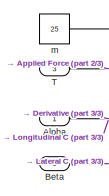
[diagram: root canvas - part 1/3, top left region]
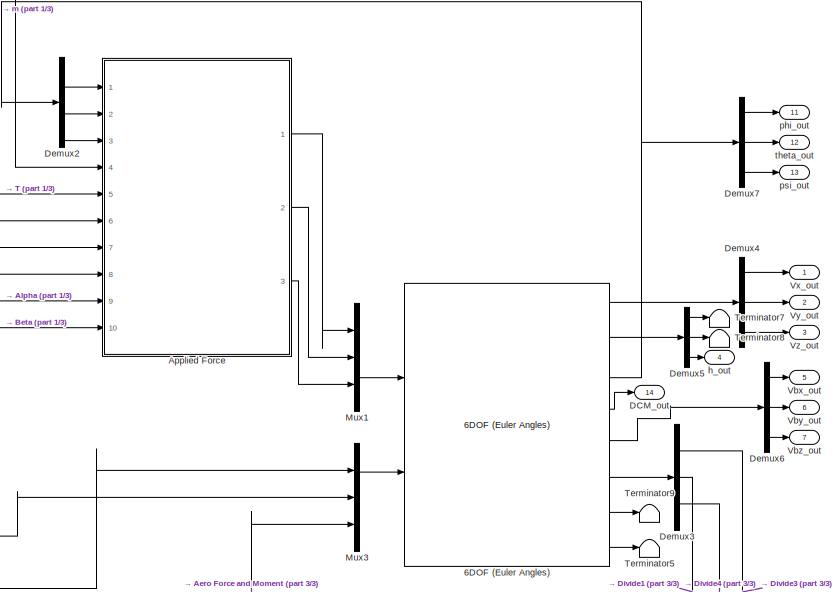
[diagram: root canvas - part 2/3, top right region]
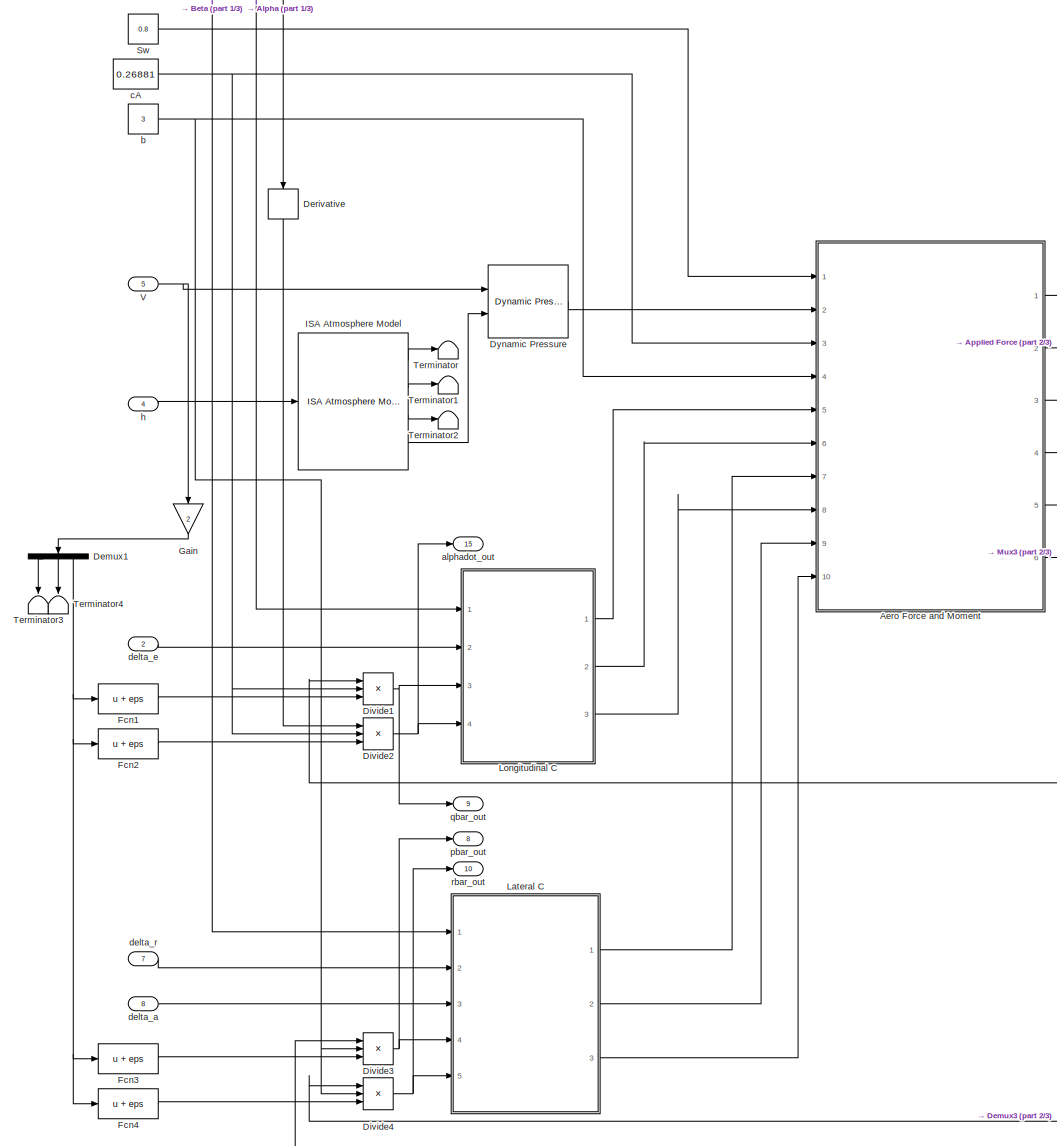
[diagram: root canvas - part 3/3, left side, full height]
MODEL slx_e022240f45c0
KIND model
CONFIG AbsTol = auto
CONFIG EnableMultiTasking = off
CONFIG FixedStep = auto
CONFIG MaxStep = auto
CONFIG MinStep = auto
CONFIG RelTol = 1e-3
CONFIG SampleTimeConstraint = Unconstrained
CONFIG Solver = VariableStepAuto
CONFIG SolverName = VariableStepAuto
CONFIG StartTime = 0.0
CONFIG StopTime = 10
BLOCK [Reference] 6DOF (Euler Angles)  REF=shared6dof/6DOF (Euler Angles)
  Ports = [2, 8]
  SourceBlock = shared6dof/6DOF (Euler Angles)
  SourceProductBaseCode = AE
  SourceProductName = Aerospace Blockset
  SourceType = 6DOF EoM (Body Axis)
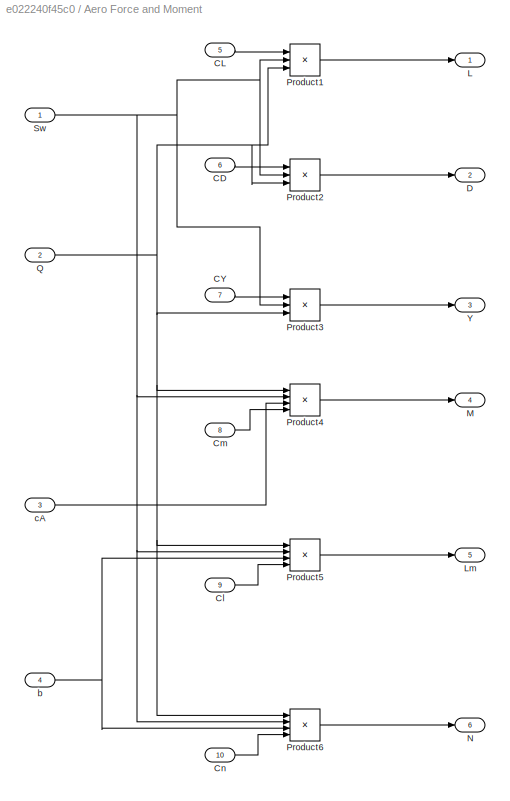
BLOCK [SubSystem] Aero Force and Moment
  Ports = [10, 6]
  RequestExecContextInheritance = off
BLOCK [Inport] Aero Force and Moment/CD
  IconDisplay = Port number
  Port = 6
BLOCK [Inport] Aero Force and Moment/CL
  IconDisplay = Port number
  Port = 5
BLOCK [Inport] Aero Force and Moment/CY
  IconDisplay = Port number
  Port = 7
BLOCK [Inport] Aero Force and Moment/Cl
  IconDisplay = Port number
  Port = 9
BLOCK [Inport] Aero Force and Moment/Cm
  IconDisplay = Port number
  Port = 8
BLOCK [Inport] Aero Force and Moment/Cn
  IconDisplay = Port number
  Port = 10
BLOCK [Outport] Aero Force and Moment/D
  IconDisplay = Port number
  Port = 2
BLOCK [Outport] Aero Force and Moment/L
  IconDisplay = Port number
BLOCK [Outport] Aero Force and Moment/Lm
  IconDisplay = Port number
  Port = 5
BLOCK [Outport] Aero Force and Moment/M
  IconDisplay = Port number
  Port = 4
BLOCK [Outport] Aero Force and Moment/N
  IconDisplay = Port number
  Port = 6
BLOCK [Product] Aero Force and Moment/Product1
  InputSameDT = off
  Inputs = 3
  OutDataTypeStr = Inherit: Inherit via internal rule
  Ports = [3, 1]
  RndMeth = Floor
  SaturateOnIntegerOverflow = off
BLOCK [Product] Aero Force and Moment/Product2
  InputSameDT = off
  Inputs = 3
  OutDataTypeStr = Inherit: Inherit via internal rule
  Ports = [3, 1]
  RndMeth = Floor
  SaturateOnIntegerOverflow = off
BLOCK [Product] Aero Force and Moment/Product3
  InputSameDT = off
  Inputs = 3
  OutDataTypeStr = Inherit: Inherit via internal rule
  Ports = [3, 1]
  RndMeth = Floor
  SaturateOnIntegerOverflow = off
BLOCK [Product] Aero Force and Moment/Product4
  InputSameDT = off
  Inputs = 4
  OutDataTypeStr = Inherit: Inherit via internal rule
  Ports = [4, 1]
  RndMeth = Floor
  SaturateOnIntegerOverflow = off
BLOCK [Product] Aero Force and Moment/Product5
  InputSameDT = off
  Inputs = 4
  OutDataTypeStr = Inherit: Inherit via internal rule
  Ports = [4, 1]
  RndMeth = Floor
  SaturateOnIntegerOverflow = off
BLOCK [Product] Aero Force and Moment/Product6
  InputSameDT = off
  Inputs = 4
  OutDataTypeStr = Inherit: Inherit via internal rule
  Ports = [4, 1]
  RndMeth = Floor
  SaturateOnIntegerOverflow = off
BLOCK [Inport] Aero Force and Moment/Q
  IconDisplay = Port number
  Port = 2
BLOCK [Inport] Aero Force and Moment/Sw
  IconDisplay = Port number
BLOCK [Outport] Aero Force and Moment/Y
  IconDisplay = Port number
  Port = 3
BLOCK [Inport] Aero Force and Moment/b
  IconDisplay = Port number
  Port = 4
BLOCK [Inport] Aero Force and Moment/cA
  IconDisplay = Port number
  Port = 3
BLOCK [Inport] Alpha
  IconDisplay = Port number
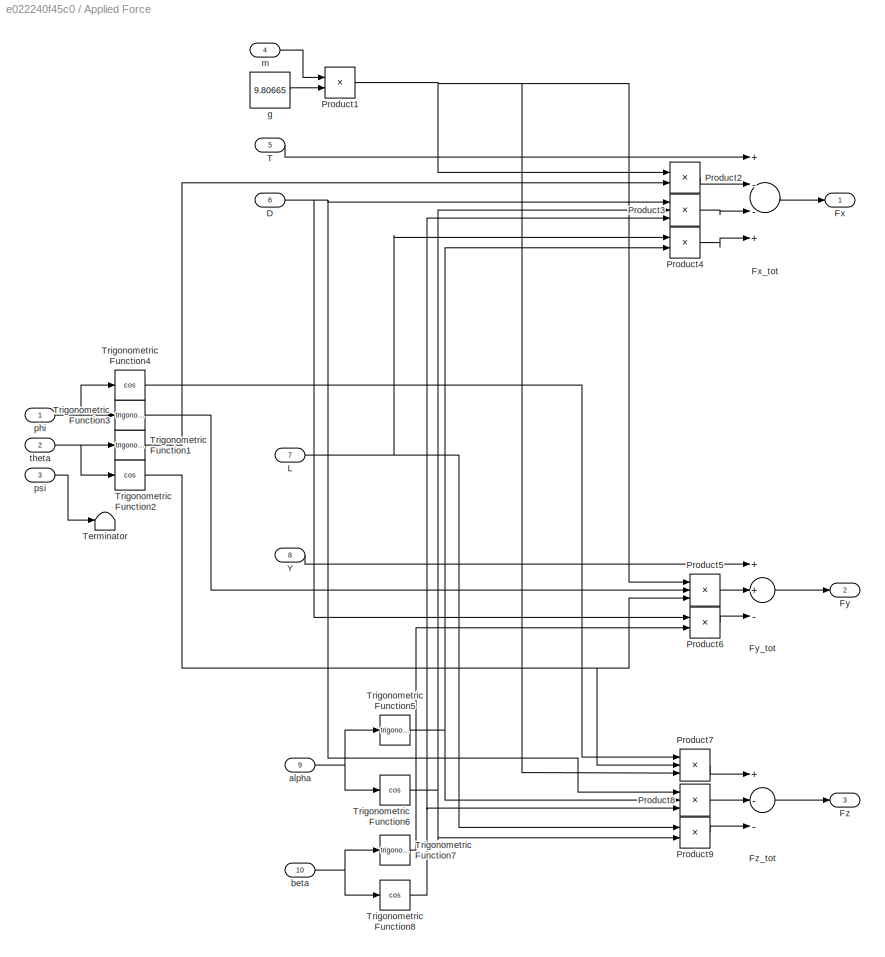
BLOCK [SubSystem] Applied Force
  Ports = [10, 3]
  RequestExecContextInheritance = off
BLOCK [Inport] Applied Force/D
  IconDisplay = Port number
  Port = 6
BLOCK [Outport] Applied Force/Fx
  IconDisplay = Port number
BLOCK [Sum] Applied Force/Fx_tot
  InputSameDT = off
  Inputs = +--+
  OutDataTypeStr = Inherit: Inherit via internal rule
  Ports = [4, 1]
  SaturateOnIntegerOverflow = off
BLOCK [Outport] Applied Force/Fy
  IconDisplay = Port number
  Port = 2
BLOCK [Sum] Applied Force/Fy_tot
  InputSameDT = off
  Inputs = ++-
  OutDataTypeStr = Inherit: Inherit via internal rule
  Ports = [3, 1]
  SaturateOnIntegerOverflow = off
BLOCK [Outport] Applied Force/Fz
  IconDisplay = Port number
  Port = 3
BLOCK [Sum] Applied Force/Fz_tot
  InputSameDT = off
  Inputs = +--
  OutDataTypeStr = Inherit: Inherit via internal rule
  Ports = [3, 1]
  SaturateOnIntegerOverflow = off
BLOCK [Inport] Applied Force/L
  IconDisplay = Port number
  Port = 7
BLOCK [Product] Applied Force/Product1
  InputSameDT = off
  OutDataTypeStr = Inherit: Inherit via internal rule
  Ports = [2, 1]
  RndMeth = Floor
  SaturateOnIntegerOverflow = off
BLOCK [Product] Applied Force/Product2
  InputSameDT = off
  OutDataTypeStr = Inherit: Inherit via internal rule
  Ports = [2, 1]
  RndMeth = Floor
  SaturateOnIntegerOverflow = off
BLOCK [Product] Applied Force/Product3
  InputSameDT = off
  Inputs = 3
  OutDataTypeStr = Inherit: Inherit via internal rule
  Ports = [3, 1]
  RndMeth = Floor
  SaturateOnIntegerOverflow = off
BLOCK [Product] Applied Force/Product4
  InputSameDT = off
  OutDataTypeStr = Inherit: Inherit via internal rule
  Ports = [2, 1]
  RndMeth = Floor
  SaturateOnIntegerOverflow = off
BLOCK [Product] Applied Force/Product5
  InputSameDT = off
  Inputs = 3
  OutDataTypeStr = Inherit: Inherit via internal rule
  Ports = [3, 1]
  RndMeth = Floor
  SaturateOnIntegerOverflow = off
BLOCK [Product] Applied Force/Product6
  InputSameDT = off
  OutDataTypeStr = Inherit: Inherit via internal rule
  Ports = [2, 1]
  RndMeth = Floor
  SaturateOnIntegerOverflow = off
BLOCK [Product] Applied Force/Product7
  InputSameDT = off
  Inputs = 3
  OutDataTypeStr = Inherit: Inherit via internal rule
  Ports = [3, 1]
  RndMeth = Floor
  SaturateOnIntegerOverflow = off
BLOCK [Product] Applied Force/Product8
  InputSameDT = off
  Inputs = 3
  OutDataTypeStr = Inherit: Inherit via internal rule
  Ports = [3, 1]
  RndMeth = Floor
  SaturateOnIntegerOverflow = off
BLOCK [Product] Applied Force/Product9
  InputSameDT = off
  OutDataTypeStr = Inherit: Inherit via internal rule
  Ports = [2, 1]
  RndMeth = Floor
  SaturateOnIntegerOverflow = off
BLOCK [Inport] Applied Force/T
  IconDisplay = Port number
  Port = 5
BLOCK [Terminator] Applied Force/Terminator
BLOCK [Trigonometry] Applied Force/Trigonometric Function1
  Ports = [1, 1]
BLOCK [Trigonometry] Applied Force/Trigonometric Function2
  Operator = cos
  Ports = [1, 1]
BLOCK [Trigonometry] Applied Force/Trigonometric Function3
  Ports = [1, 1]
BLOCK [Trigonometry] Applied Force/Trigonometric Function4
  Operator = cos
  Ports = [1, 1]
BLOCK [Trigonometry] Applied Force/Trigonometric Function5
  Ports = [1, 1]
BLOCK [Trigonometry] Applied Force/Trigonometric Function6
  Operator = cos
  Ports = [1, 1]
BLOCK [Trigonometry] Applied Force/Trigonometric Function7
  Ports = [1, 1]
BLOCK [Trigonometry] Applied Force/Trigonometric Function8
  Operator = cos
  Ports = [1, 1]
BLOCK [Inport] Applied Force/Y
  IconDisplay = Port number
  Port = 8
BLOCK [Inport] Applied Force/alpha
  IconDisplay = Port number
  Port = 9
BLOCK [Inport] Applied Force/beta
  IconDisplay = Port number
  Port = 10
BLOCK [Constant] Applied Force/g
  Value = 9.80665
BLOCK [Inport] Applied Force/m
  IconDisplay = Port number
  Port = 4
BLOCK [Inport] Applied Force/phi
  IconDisplay = Port number
BLOCK [Inport] Applied Force/psi
  IconDisplay = Port number
  Port = 3
BLOCK [Inport] Applied Force/theta
  IconDisplay = Port number
  Port = 2
BLOCK [Inport] Beta
  IconDisplay = Port number
  Port = 6
BLOCK [Outport] DCM_out
  IconDisplay = Port number
  Port = 14
BLOCK [Demux] Demux1
  DisplayOption = bar
  Outputs = 3
  Ports = [1, 3]
BLOCK [Demux] Demux2
  DisplayOption = bar
  Outputs = 3
  Ports = [1, 3]
BLOCK [Demux] Demux3
  DisplayOption = bar
  Outputs = 3
  Ports = [1, 3]
BLOCK [Demux] Demux4
  DisplayOption = bar
  Outputs = 3
  Ports = [1, 3]
BLOCK [Demux] Demux5
  DisplayOption = bar
  Outputs = 3
  Ports = [1, 3]
BLOCK [Demux] Demux6
  DisplayOption = bar
  Outputs = 3
  Ports = [1, 3]
BLOCK [Demux] Demux7
  DisplayOption = bar
  Outputs = 3
  Ports = [1, 3]
BLOCK [Derivative] Derivative
BLOCK [Product] Divide1
  InputSameDT = off
  Inputs = **/
  OutDataTypeStr = Inherit: Inherit via internal rule
  Ports = [3, 1]
  RndMeth = Floor
  SaturateOnIntegerOverflow = off
BLOCK [Product] Divide2
  InputSameDT = off
  Inputs = **/
  OutDataTypeStr = Inherit: Inherit via internal rule
  Ports = [3, 1]
  RndMeth = Floor
  SaturateOnIntegerOverflow = off
BLOCK [Product] Divide3
  InputSameDT = off
  Inputs = **/
  OutDataTypeStr = Inherit: Inherit via internal rule
  Ports = [3, 1]
  RndMeth = Floor
  SaturateOnIntegerOverflow = off
BLOCK [Product] Divide4
  InputSameDT = off
  Inputs = **/
  OutDataTypeStr = Inherit: Inherit via internal rule
  Ports = [3, 1]
  RndMeth = Floor
  SaturateOnIntegerOverflow = off
BLOCK [Reference] Dynamic Pressure  REF=aerolibasang/Dynamic Pressure
  Ports = [2, 1]
  SourceBlock = aerolibasang/Dynamic Pressure
  SourceProductBaseCode = AE
  SourceProductName = Aerospace Blockset
  SourceType = Dynamic Pressure
BLOCK [Fcn] Fcn1
  Expr = u + eps
BLOCK [Fcn] Fcn2
  Expr = u + eps
BLOCK [Fcn] Fcn3
  Expr = u + eps
BLOCK [Fcn] Fcn4
  Expr = u + eps
BLOCK [Gain] Gain
  Gain = 2
  OutDataTypeStr = Inherit: Inherit via internal rule
  ParamDataTypeStr = Inherit: Inherit via internal rule
  SaturateOnIntegerOverflow = off
BLOCK [Reference] ISA Atmosphere Model  REF=aerolibatmos2/ISA Atmosphere Model
  Ports = [1, 4]
  SourceBlock = aerolibatmos2/ISA Atmosphere Model
  SourceProductBaseCode = AE
  SourceProductName = Aerospace Blockset
  SourceType = International Standard Atmosphere Model
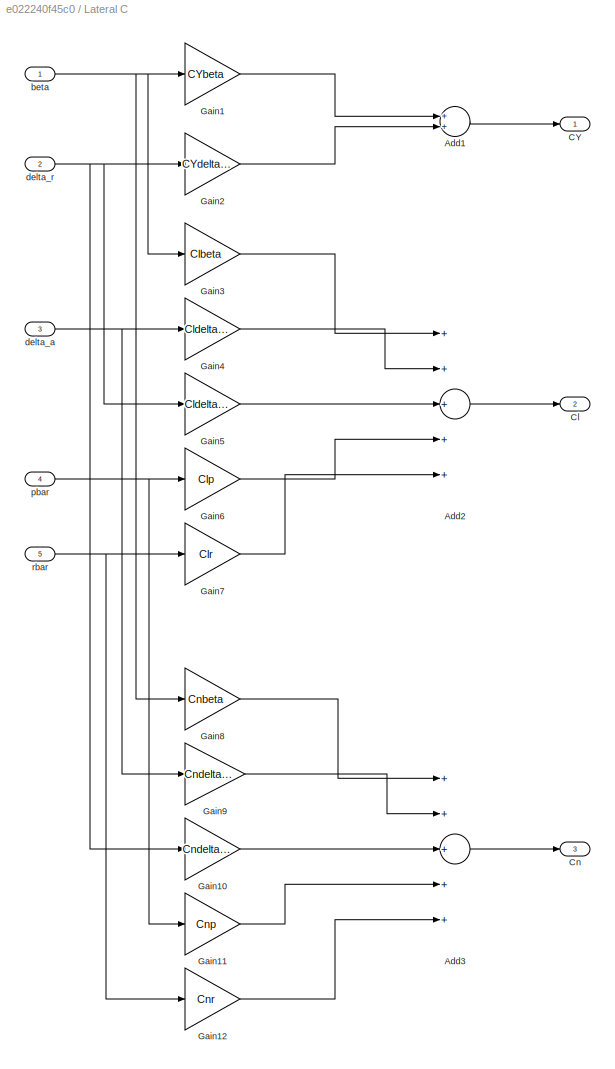
BLOCK [SubSystem] Lateral C
  Ports = [5, 3]
  RequestExecContextInheritance = off
BLOCK [Sum] Lateral C/Add1
  InputSameDT = off
  OutDataTypeStr = Inherit: Inherit via internal rule
  Ports = [2, 1]
  SaturateOnIntegerOverflow = off
BLOCK [Sum] Lateral C/Add2
  InputSameDT = off
  Inputs = +++++
  OutDataTypeStr = Inherit: Inherit via internal rule
  Ports = [5, 1]
  SaturateOnIntegerOverflow = off
BLOCK [Sum] Lateral C/Add3
  InputSameDT = off
  Inputs = +++++
  OutDataTypeStr = Inherit: Inherit via internal rule
  Ports = [5, 1]
  SaturateOnIntegerOverflow = off
BLOCK [Outport] Lateral C/CY
  IconDisplay = Port number
BLOCK [Outport] Lateral C/Cl
  IconDisplay = Port number
  Port = 2
BLOCK [Outport] Lateral C/Cn
  IconDisplay = Port number
  Port = 3
BLOCK [Gain] Lateral C/Gain1
  Gain = CYbeta
  OutDataTypeStr = Inherit: Inherit via internal rule
  ParamDataTypeStr = Inherit: Inherit via internal rule
  SaturateOnIntegerOverflow = off
BLOCK [Gain] Lateral C/Gain10
  Gain = Cndelta_r
  OutDataTypeStr = Inherit: Inherit via internal rule
  ParamDataTypeStr = Inherit: Inherit via internal rule
  SaturateOnIntegerOverflow = off
BLOCK [Gain] Lateral C/Gain11
  Gain = Cnp
  OutDataTypeStr = Inherit: Inherit via internal rule
  ParamDataTypeStr = Inherit: Inherit via internal rule
  SaturateOnIntegerOverflow = off
BLOCK [Gain] Lateral C/Gain12
  Gain = Cnr
  OutDataTypeStr = Inherit: Inherit via internal rule
  ParamDataTypeStr = Inherit: Inherit via internal rule
  SaturateOnIntegerOverflow = off
BLOCK [Gain] Lateral C/Gain2
  Gain = CYdelta_r
  OutDataTypeStr = Inherit: Inherit via internal rule
  ParamDataTypeStr = Inherit: Inherit via internal rule
  SaturateOnIntegerOverflow = off
BLOCK [Gain] Lateral C/Gain3
  Gain = Clbeta
  OutDataTypeStr = Inherit: Inherit via internal rule
  ParamDataTypeStr = Inherit: Inherit via internal rule
  SaturateOnIntegerOverflow = off
BLOCK [Gain] Lateral C/Gain4
  Gain = Cldelta_a
  OutDataTypeStr = Inherit: Inherit via internal rule
  ParamDataTypeStr = Inherit: Inherit via internal rule
  SaturateOnIntegerOverflow = off
BLOCK [Gain] Lateral C/Gain5
  Gain = Cldelta_r
  OutDataTypeStr = Inherit: Inherit via internal rule
  ParamDataTypeStr = Inherit: Inherit via internal rule
  SaturateOnIntegerOverflow = off
BLOCK [Gain] Lateral C/Gain6
  Gain = Clp
  OutDataTypeStr = Inherit: Inherit via internal rule
  ParamDataTypeStr = Inherit: Inherit via internal rule
  SaturateOnIntegerOverflow = off
BLOCK [Gain] Lateral C/Gain7
  Gain = Clr
  OutDataTypeStr = Inherit: Inherit via internal rule
  ParamDataTypeStr = Inherit: Inherit via internal rule
  SaturateOnIntegerOverflow = off
BLOCK [Gain] Lateral C/Gain8
  Gain = Cnbeta
  OutDataTypeStr = Inherit: Inherit via internal rule
  ParamDataTypeStr = Inherit: Inherit via internal rule
  SaturateOnIntegerOverflow = off
BLOCK [Gain] Lateral C/Gain9
  Gain = Cndelta_a
  OutDataTypeStr = Inherit: Inherit via internal rule
  ParamDataTypeStr = Inherit: Inherit via internal rule
  SaturateOnIntegerOverflow = off
BLOCK [Inport] Lateral C/beta
  IconDisplay = Port number
BLOCK [Inport] Lateral C/delta_a
  IconDisplay = Port number
  Port = 3
BLOCK [Inport] Lateral C/delta_r
  IconDisplay = Port number
  Port = 2
BLOCK [Inport] Lateral C/pbar
  IconDisplay = Port number
  Port = 4
BLOCK [Inport] Lateral C/rbar
  IconDisplay = Port number
  Port = 5
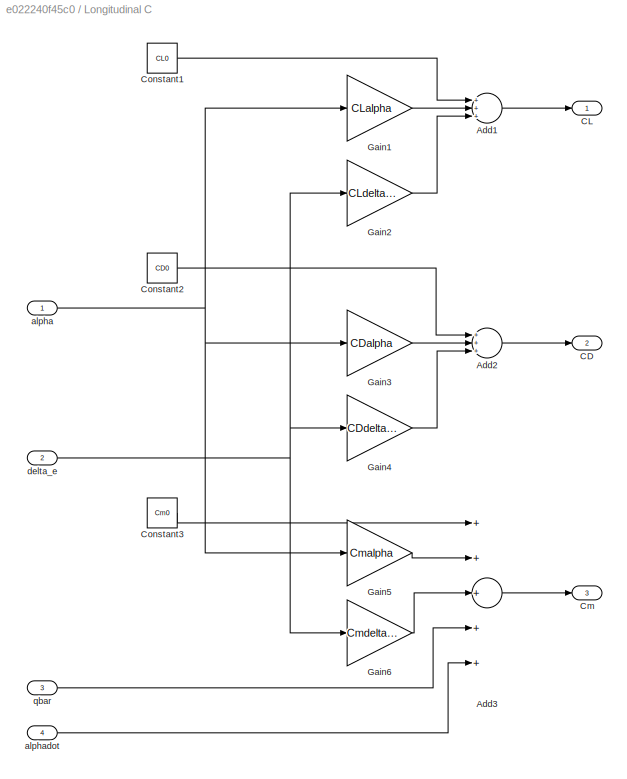
BLOCK [SubSystem] Longitudinal C
  Ports = [4, 3]
  RequestExecContextInheritance = off
BLOCK [Sum] Longitudinal C/Add1
  InputSameDT = off
  Inputs = +++
  OutDataTypeStr = Inherit: Inherit via internal rule
  Ports = [3, 1]
  SaturateOnIntegerOverflow = off
BLOCK [Sum] Longitudinal C/Add2
  InputSameDT = off
  Inputs = +++
  OutDataTypeStr = Inherit: Inherit via internal rule
  Ports = [3, 1]
  SaturateOnIntegerOverflow = off
BLOCK [Sum] Longitudinal C/Add3
  InputSameDT = off
  Inputs = +++++
  OutDataTypeStr = Inherit: Inherit via internal rule
  Ports = [5, 1]
  SaturateOnIntegerOverflow = off
BLOCK [Outport] Longitudinal C/CD
  IconDisplay = Port number
  Port = 2
BLOCK [Outport] Longitudinal C/CL
  IconDisplay = Port number
BLOCK [Outport] Longitudinal C/Cm
  IconDisplay = Port number
  Port = 3
BLOCK [Constant] Longitudinal C/Constant1
  Value = CL0
BLOCK [Constant] Longitudinal C/Constant2
  Value = CD0
BLOCK [Constant] Longitudinal C/Constant3
  Value = Cm0
BLOCK [Gain] Longitudinal C/Gain1
  Gain = CLalpha
  OutDataTypeStr = Inherit: Inherit via internal rule
  ParamDataTypeStr = Inherit: Inherit via internal rule
  SaturateOnIntegerOverflow = off
BLOCK [Gain] Longitudinal C/Gain2
  Gain = CLdelta_e
  OutDataTypeStr = Inherit: Inherit via internal rule
  ParamDataTypeStr = Inherit: Inherit via internal rule
  SaturateOnIntegerOverflow = off
BLOCK [Gain] Longitudinal C/Gain3
  Gain = CDalpha
  OutDataTypeStr = Inherit: Inherit via internal rule
  ParamDataTypeStr = Inherit: Inherit via internal rule
  SaturateOnIntegerOverflow = off
BLOCK [Gain] Longitudinal C/Gain4
  Gain = CDdelta_e
  OutDataTypeStr = Inherit: Inherit via internal rule
  ParamDataTypeStr = Inherit: Inherit via internal rule
  SaturateOnIntegerOverflow = off
BLOCK [Gain] Longitudinal C/Gain5
  Gain = Cmalpha
  OutDataTypeStr = Inherit: Inherit via internal rule
  ParamDataTypeStr = Inherit: Inherit via internal rule
  SaturateOnIntegerOverflow = off
BLOCK [Gain] Longitudinal C/Gain6
  Gain = Cmdelta_e
  OutDataTypeStr = Inherit: Inherit via internal rule
  ParamDataTypeStr = Inherit: Inherit via internal rule
  SaturateOnIntegerOverflow = off
BLOCK [Inport] Longitudinal C/alpha
  IconDisplay = Port number
BLOCK [Inport] Longitudinal C/alphadot
  IconDisplay = Port number
  Port = 4
BLOCK [Inport] Longitudinal C/delta_e
  IconDisplay = Port number
  Port = 2
BLOCK [Inport] Longitudinal C/qbar
  IconDisplay = Port number
  Port = 3
BLOCK [Mux] Mux1
  DisplayOption = bar
  Inputs = 3
  Ports = [3, 1]
BLOCK [Mux] Mux3
  DisplayOption = bar
  Inputs = 3
  Ports = [3, 1]
BLOCK [Constant] Sw
  Value = 0.8
BLOCK [Inport] T
  IconDisplay = Port number
  Port = 3
BLOCK [Terminator] Terminator
BLOCK [Terminator] Terminator1
BLOCK [Terminator] Terminator2
BLOCK [Terminator] Terminator3
BLOCK [Terminator] Terminator4
BLOCK [Terminator] Terminator5
BLOCK [Terminator] Terminator7
BLOCK [Terminator] Terminator8
BLOCK [Terminator] Terminator9
BLOCK [Inport] V
  IconDisplay = Port number
  Port = 5
  PortDimensions = 3
BLOCK [Outport] Vbx_out
  IconDisplay = Port number
  Port = 5
BLOCK [Outport] Vby_out
  IconDisplay = Port number
  Port = 6
BLOCK [Outport] Vbz_out
  IconDisplay = Port number
  Port = 7
BLOCK [Outport] Vx_out
  IconDisplay = Port number
BLOCK [Outport] Vy_out
  IconDisplay = Port number
  Port = 2
BLOCK [Outport] Vz_out
  IconDisplay = Port number
  Port = 3
BLOCK [Outport] alphadot_out
  IconDisplay = Port number
  Port = 15
BLOCK [Constant] b
  Value = 3
BLOCK [Constant] cA
  Value = 0.26881
BLOCK [Inport] delta_a
  IconDisplay = Port number
  Port = 8
BLOCK [Inport] delta_e
  IconDisplay = Port number
  Port = 2
BLOCK [Inport] delta_r
  IconDisplay = Port number
  Port = 7
BLOCK [Inport] h
  IconDisplay = Port number
  Port = 4
BLOCK [Outport] h_out
  IconDisplay = Port number
  Port = 4
BLOCK [Constant] m
  Value = 25
BLOCK [Outport] pbar_out
  IconDisplay = Port number
  Port = 8
BLOCK [Outport] phi_out
  IconDisplay = Port number
  Port = 11
BLOCK [Outport] psi_out
  IconDisplay = Port number
  Port = 13
BLOCK [Outport] qbar_out
  IconDisplay = Port number
  Port = 9
BLOCK [Outport] rbar_out
  IconDisplay = Port number
  Port = 10
BLOCK [Outport] theta_out
  IconDisplay = Port number
  Port = 12
LINE 6DOF (Euler Angles):1 -> Demux4:1
LINE 6DOF (Euler Angles):2 -> Demux5:1
NET 6DOF (Euler Angles):3 -> Demux2:1, Demux7:1
LINE 6DOF (Euler Angles):4 -> DCM_out:1
LINE 6DOF (Euler Angles):5 -> Demux6:1
LINE 6DOF (Euler Angles):6 -> Demux3:1
LINE 6DOF (Euler Angles):7 -> Terminator9:1
LINE 6DOF (Euler Angles):8 -> Terminator5:1
LINE Aero Force and Moment/CD:1 -> Aero Force and Moment/Product2:1
LINE Aero Force and Moment/CL:1 -> Aero Force and Moment/Product1:1
LINE Aero Force and Moment/CY:1 -> Aero Force and Moment/Product3:1
LINE Aero Force and Moment/Cl:1 -> Aero Force and Moment/Product5:4
LINE Aero Force and Moment/Cm:1 -> Aero Force and Moment/Product4:4
LINE Aero Force and Moment/Cn:1 -> Aero Force and Moment/Product6:4
LINE Aero Force and Moment/Product1:1 -> Aero Force and Moment/L:1
LINE Aero Force and Moment/Product2:1 -> Aero Force and Moment/D:1
LINE Aero Force and Moment/Product3:1 -> Aero Force and Moment/Y:1
LINE Aero Force and Moment/Product4:1 -> Aero Force and Moment/M:1
LINE Aero Force and Moment/Product5:1 -> Aero Force and Moment/Lm:1
LINE Aero Force and Moment/Product6:1 -> Aero Force and Moment/N:1
NET Aero Force and Moment/Q:1 -> Aero Force and Moment/Product1:3, Aero Force and Moment/Product2:3, Aero Force and Moment/Product3:3, Aero Force and Moment/Product4:1, Aero Force and Moment/Product5:1, Aero Force and Moment/Product6:1
NET Aero Force and Moment/Sw:1 -> Aero Force and Moment/Product1:2, Aero Force and Moment/Product2:2, Aero Force and Moment/Product3:2, Aero Force and Moment/Product4:2, Aero Force and Moment/Product5:2, Aero Force and Moment/Product6:2
NET Aero Force and Moment/b:1 -> Aero Force and Moment/Product5:3, Aero Force and Moment/Product6:3
LINE Aero Force and Moment/cA:1 -> Aero Force and Moment/Product4:3
LINE Aero Force and Moment:1 -> Applied Force:7
LINE Aero Force and Moment:2 -> Applied Force:6
LINE Aero Force and Moment:3 -> Applied Force:8
LINE Aero Force and Moment:4 -> Mux3:2
LINE Aero Force and Moment:5 -> Mux3:1
LINE Aero Force and Moment:6 -> Mux3:3
NET Alpha:1 -> Applied Force:9, Derivative:1, Longitudinal C:1
NET Applied Force/D:1 -> Applied Force/Product3:1, Applied Force/Product6:1, Applied Force/Product8:1
LINE Applied Force/Fx_tot:1 -> Applied Force/Fx:1
LINE Applied Force/Fy_tot:1 -> Applied Force/Fy:1
LINE Applied Force/Fz_tot:1 -> Applied Force/Fz:1
NET Applied Force/L:1 -> Applied Force/Product4:1, Applied Force/Product9:1
NET Applied Force/Product1:1 -> Applied Force/Product2:1, Applied Force/Product5:1, Applied Force/Product7:3
LINE Applied Force/Product2:1 -> Applied Force/Fx_tot:2
LINE Applied Force/Product3:1 -> Applied Force/Fx_tot:3
LINE Applied Force/Product4:1 -> Applied Force/Fx_tot:4
LINE Applied Force/Product5:1 -> Applied Force/Fy_tot:2
LINE Applied Force/Product6:1 -> Applied Force/Fy_tot:3
LINE Applied Force/Product7:1 -> Applied Force/Fz_tot:1
LINE Applied Force/Product8:1 -> Applied Force/Fz_tot:2
LINE Applied Force/Product9:1 -> Applied Force/Fz_tot:3
LINE Applied Force/T:1 -> Applied Force/Fx_tot:1
LINE Applied Force/Trigonometric Function1:1 -> Applied Force/Product2:2
NET Applied Force/Trigonometric Function2:1 -> Applied Force/Product5:3, Applied Force/Product7:2
LINE Applied Force/Trigonometric Function3:1 -> Applied Force/Product5:2
LINE Applied Force/Trigonometric Function4:1 -> Applied Force/Product7:1
NET Applied Force/Trigonometric Function5:1 -> Applied Force/Product4:2, Applied Force/Product8:2
NET Applied Force/Trigonometric Function6:1 -> Applied Force/Product3:2, Applied Force/Product9:2
LINE Applied Force/Trigonometric Function7:1 -> Applied Force/Product6:2
NET Applied Force/Trigonometric Function8:1 -> Applied Force/Product3:3, Applied Force/Product8:3
LINE Applied Force/Y:1 -> Applied Force/Fy_tot:1
NET Applied Force/alpha:1 -> Applied Force/Trigonometric Function5:1, Applied Force/Trigonometric Function6:1
NET Applied Force/beta:1 -> Applied Force/Trigonometric Function7:1, Applied Force/Trigonometric Function8:1
LINE Applied Force/g:1 -> Applied Force/Product1:2
LINE Applied Force/m:1 -> Applied Force/Product1:1
NET Applied Force/phi:1 -> Applied Force/Trigonometric Function3:1, Applied Force/Trigonometric Function4:1
LINE Applied Force/psi:1 -> Applied Force/Terminator:1
NET Applied Force/theta:1 -> Applied Force/Trigonometric Function1:1, Applied Force/Trigonometric Function2:1
LINE Applied Force:1 -> Mux1:1
LINE Applied Force:2 -> Mux1:2
LINE Applied Force:3 -> Mux1:3
NET Beta:1 -> Applied Force:10, Lateral C:1
LINE Demux1:1 -> Terminator3:1
LINE Demux1:2 -> Terminator4:1
NET Demux1:3 -> Fcn1:1, Fcn2:1, Fcn3:1, Fcn4:1
LINE Demux2:1 -> Applied Force:1
LINE Demux2:2 -> Applied Force:2
LINE Demux2:3 -> Applied Force:3
LINE Demux3:1 -> Divide3:1
LINE Demux3:2 -> Divide1:1
LINE Demux3:3 -> Divide4:1
LINE Demux4:1 -> Vx_out:1
LINE Demux4:2 -> Vy_out:1
LINE Demux4:3 -> Vz_out:1
LINE Demux5:1 -> Terminator7:1
LINE Demux5:2 -> Terminator8:1
LINE Demux5:3 -> h_out:1
LINE Demux6:1 -> Vbx_out:1
LINE Demux6:2 -> Vby_out:1
LINE Demux6:3 -> Vbz_out:1
LINE Demux7:1 -> phi_out:1
LINE Demux7:2 -> theta_out:1
LINE Demux7:3 -> psi_out:1
LINE Derivative:1 -> Divide2:1
NET Divide1:1 -> Longitudinal C:3, qbar_out:1
NET Divide2:1 -> Longitudinal C:4, alphadot_out:1
NET Divide3:1 -> Lateral C:4, pbar_out:1
NET Divide4:1 -> Lateral C:5, rbar_out:1
LINE Dynamic Pressure:1 -> Aero Force and Moment:2
LINE Fcn1:1 -> Divide1:3
LINE Fcn2:1 -> Divide2:3
LINE Fcn3:1 -> Divide3:3
LINE Fcn4:1 -> Divide4:3
LINE Gain:1 -> Demux1:1
LINE ISA Atmosphere Model:1 -> Terminator:1
LINE ISA Atmosphere Model:2 -> Terminator1:1
LINE ISA Atmosphere Model:3 -> Terminator2:1
LINE ISA Atmosphere Model:4 -> Dynamic Pressure:2
LINE Lateral C/Add1:1 -> Lateral C/CY:1
LINE Lateral C/Add2:1 -> Lateral C/Cl:1
LINE Lateral C/Add3:1 -> Lateral C/Cn:1
LINE Lateral C/Gain10:1 -> Lateral C/Add3:3
LINE Lateral C/Gain11:1 -> Lateral C/Add3:4
LINE Lateral C/Gain12:1 -> Lateral C/Add3:5
LINE Lateral C/Gain1:1 -> Lateral C/Add1:1
LINE Lateral C/Gain2:1 -> Lateral C/Add1:2
LINE Lateral C/Gain3:1 -> Lateral C/Add2:1
LINE Lateral C/Gain4:1 -> Lateral C/Add2:2
LINE Lateral C/Gain5:1 -> Lateral C/Add2:3
LINE Lateral C/Gain6:1 -> Lateral C/Add2:4
LINE Lateral C/Gain7:1 -> Lateral C/Add2:5
LINE Lateral C/Gain8:1 -> Lateral C/Add3:1
LINE Lateral C/Gain9:1 -> Lateral C/Add3:2
NET Lateral C/beta:1 -> Lateral C/Gain1:1, Lateral C/Gain3:1, Lateral C/Gain8:1
NET Lateral C/delta_a:1 -> Lateral C/Gain4:1, Lateral C/Gain9:1
NET Lateral C/delta_r:1 -> Lateral C/Gain10:1, Lateral C/Gain2:1, Lateral C/Gain5:1
NET Lateral C/pbar:1 -> Lateral C/Gain11:1, Lateral C/Gain6:1
NET Lateral C/rbar:1 -> Lateral C/Gain12:1, Lateral C/Gain7:1
LINE Lateral C:1 -> Aero Force and Moment:7
LINE Lateral C:2 -> Aero Force and Moment:9
LINE Lateral C:3 -> Aero Force and Moment:10
LINE Longitudinal C/Add1:1 -> Longitudinal C/CL:1
LINE Longitudinal C/Add2:1 -> Longitudinal C/CD:1
LINE Longitudinal C/Add3:1 -> Longitudinal C/Cm:1
LINE Longitudinal C/Constant1:1 -> Longitudinal C/Add1:1
LINE Longitudinal C/Constant2:1 -> Longitudinal C/Add2:1
LINE Longitudinal C/Constant3:1 -> Longitudinal C/Add3:1
LINE Longitudinal C/Gain1:1 -> Longitudinal C/Add1:2
LINE Longitudinal C/Gain2:1 -> Longitudinal C/Add1:3
LINE Longitudinal C/Gain3:1 -> Longitudinal C/Add2:2
LINE Longitudinal C/Gain4:1 -> Longitudinal C/Add2:3
LINE Longitudinal C/Gain5:1 -> Longitudinal C/Add3:2
LINE Longitudinal C/Gain6:1 -> Longitudinal C/Add3:3
NET Longitudinal C/alpha:1 -> Longitudinal C/Gain1:1, Longitudinal C/Gain3:1, Longitudinal C/Gain5:1
LINE Longitudinal C/alphadot:1 -> Longitudinal C/Add3:5
NET Longitudinal C/delta_e:1 -> Longitudinal C/Gain2:1, Longitudinal C/Gain4:1, Longitudinal C/Gain6:1
LINE Longitudinal C/qbar:1 -> Longitudinal C/Add3:4
LINE Longitudinal C:1 -> Aero Force and Moment:5
LINE Longitudinal C:2 -> Aero Force and Moment:6
LINE Longitudinal C:3 -> Aero Force and Moment:8
LINE Mux1:1 -> 6DOF (Euler Angles):1
LINE Mux3:1 -> 6DOF (Euler Angles):2
LINE Sw:1 -> Aero Force and Moment:1
LINE T:1 -> Applied Force:5
NET V:1 -> Dynamic Pressure:1, Gain:1
NET b:1 -> Aero Force and Moment:4, Divide3:2, Divide4:2
NET cA:1 -> Aero Force and Moment:3, Divide1:2, Divide2:2
LINE delta_a:1 -> Lateral C:3
LINE delta_e:1 -> Longitudinal C:2
LINE delta_r:1 -> Lateral C:2
LINE h:1 -> ISA Atmosphere Model:1
LINE m:1 -> Applied Force:4
note: NET lines group one-source signal fan-out (src -> all destinations, sorted); 1:1 wires keep LINE
